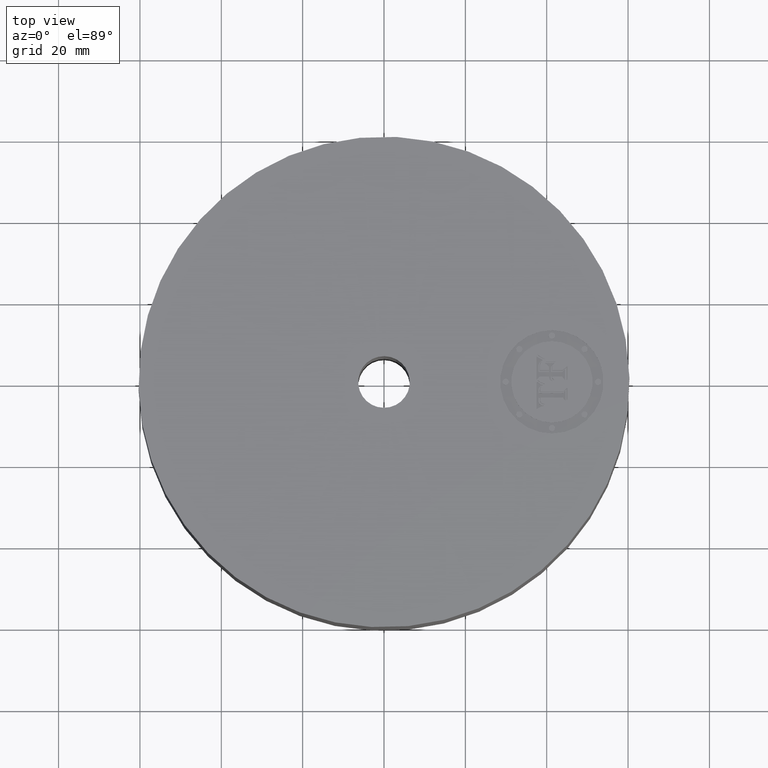
[diagram: clean part render]
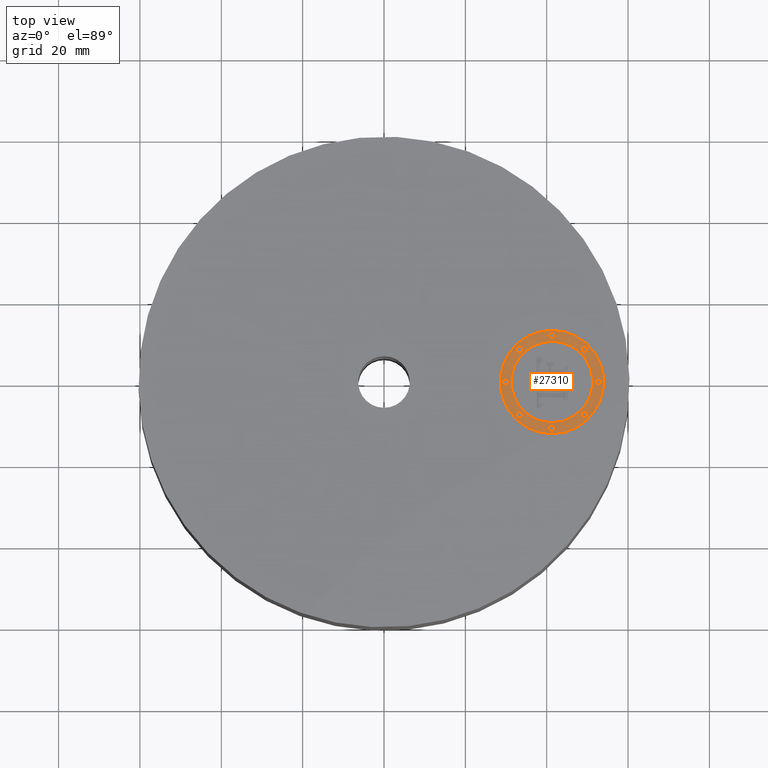
[diagram: same view with one face highlighted and labeled with its STEP entity id]
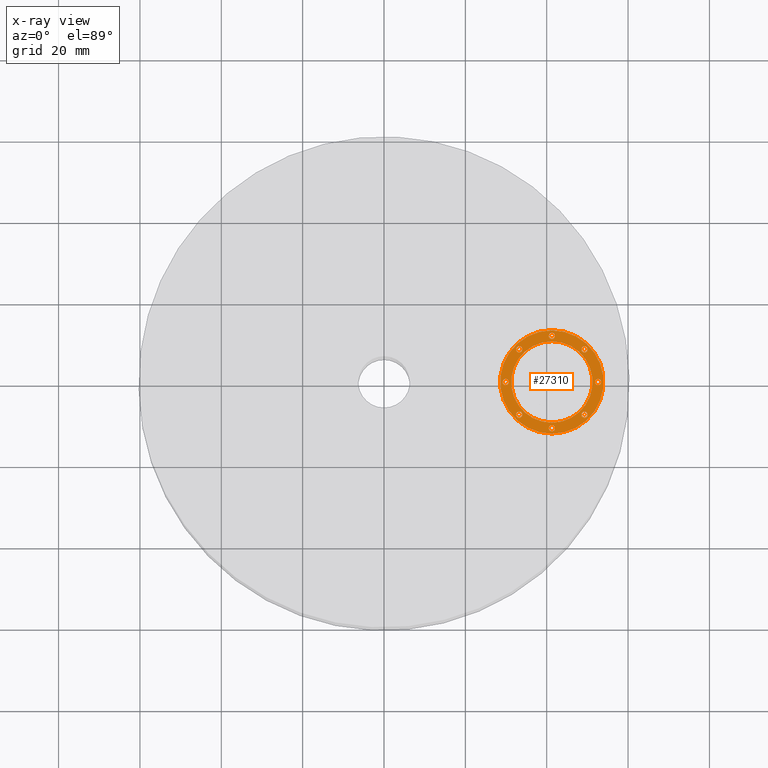
[diagram: x-ray of the same camera — body ghosted, the highlighted face saturated]
A machine part, top view. The second image highlights one B-rep face of the part: STEP entity #27310.
The next image is the same camera in x-ray: the body ghosted, the highlighted face saturated — about 0% of this face is hidden behind the body in this view.
In plain terms, the highlighted planar face has unit normal (0, 0, 1).
Its self-contained STEP definition (entity closure, byte-faithful):
#15957=AXIS2_PLACEMENT_3D('Plane Axis2P3D',#15954,#15955,#15956) ;
#27108=AXIS2_PLACEMENT_3D('Circle Axis2P3D',#27106,#27107,$) ;
#27127=AXIS2_PLACEMENT_3D('Circle Axis2P3D',#27125,#27126,$) ;
#27150=AXIS2_PLACEMENT_3D('Circle Axis2P3D',#27148,#27149,$) ;
#27159=AXIS2_PLACEMENT_3D('Circle Axis2P3D',#27157,#27158,$) ;
#27168=AXIS2_PLACEMENT_3D('Circle Axis2P3D',#27166,#27167,$) ;
#27177=AXIS2_PLACEMENT_3D('Circle Axis2P3D',#27175,#27176,$) ;
#27186=AXIS2_PLACEMENT_3D('Circle Axis2P3D',#27184,#27185,$) ;
#27195=AXIS2_PLACEMENT_3D('Circle Axis2P3D',#27193,#27194,$) ;
#27204=AXIS2_PLACEMENT_3D('Circle Axis2P3D',#27202,#27203,$) ;
#27213=AXIS2_PLACEMENT_3D('Circle Axis2P3D',#27211,#27212,$) ;
#27222=AXIS2_PLACEMENT_3D('Circle Axis2P3D',#27220,#27221,$) ;
#27231=AXIS2_PLACEMENT_3D('Circle Axis2P3D',#27229,#27230,$) ;
#27240=AXIS2_PLACEMENT_3D('Circle Axis2P3D',#27238,#27239,$) ;
#27249=AXIS2_PLACEMENT_3D('Circle Axis2P3D',#27247,#27248,$) ;
#27258=AXIS2_PLACEMENT_3D('Circle Axis2P3D',#27256,#27257,$) ;
#27267=AXIS2_PLACEMENT_3D('Circle Axis2P3D',#27265,#27266,$) ;
#27276=AXIS2_PLACEMENT_3D('Circle Axis2P3D',#27274,#27275,$) ;
#27285=AXIS2_PLACEMENT_3D('Circle Axis2P3D',#27283,#27284,$) ;
#27294=AXIS2_PLACEMENT_3D('Circle Axis2P3D',#27292,#27293,$) ;
#27303=AXIS2_PLACEMENT_3D('Circle Axis2P3D',#27301,#27302,$) ;
#15954=CARTESIAN_POINT('Axis2P3D Location',(0.,0.,1.98500000001)) ;
#27096=CARTESIAN_POINT('Vertex',(1.62500000001,0.499999995002,1.98500000001)) ;
#27103=CARTESIAN_POINT('Vertex',(1.62500000001,-0.499999995002,1.98500000001)) ;
#27106=CARTESIAN_POINT('Axis2P3D Location',(1.62500000001,0.,1.98500000001)) ;
#27125=CARTESIAN_POINT('Axis2P3D Location',(1.62500000001,0.,1.98500000001)) ;
#27148=CARTESIAN_POINT('Axis2P3D Location',(1.62500000001,0.,1.98500000001)) ;
#27152=CARTESIAN_POINT('Vertex',(1.62500000001,-0.393939390002,1.98500000001)) ;
#27154=CARTESIAN_POINT('Vertex',(1.62500000001,0.393939390002,1.98500000001)) ;
#27157=CARTESIAN_POINT('Axis2P3D Location',(1.62500000001,0.,1.98500000001)) ;
#27166=CARTESIAN_POINT('Axis2P3D Location',(1.1780303075,-1.27155105343E-015,1.98500000001)) ;
#27170=CARTESIAN_POINT('Vertex',(1.1780303075,-0.0303030300001,1.98500000001)) ;
#27172=CARTESIAN_POINT('Vertex',(1.1780303075,0.0303030300001,1.98500000001)) ;
#27175=CARTESIAN_POINT('Axis2P3D Location',(1.1780303075,-1.27155105343E-015,1.98500000001)) ;
#27184=CARTESIAN_POINT('Axis2P3D Location',(1.62500000001,0.446969692502,1.98500000001)) ;
#27188=CARTESIAN_POINT('Vertex',(1.62500000001,0.416666662502,1.98500000001)) ;
#27190=CARTESIAN_POINT('Vertex',(1.62500000001,0.477272722502,1.98500000001)) ;
#27193=CARTESIAN_POINT('Axis2P3D Location',(1.62500000001,0.446969692502,1.98500000001)) ;
#27202=CARTESIAN_POINT('Axis2P3D Location',(1.30894469945,0.316055300553,1.98500000001)) ;
#27206=CARTESIAN_POINT('Vertex',(1.30894469945,0.285752270553,1.98500000001)) ;
#27208=CARTESIAN_POINT('Vertex',(1.30894469945,0.346358330553,1.98500000001)) ;
#27211=CARTESIAN_POINT('Axis2P3D Location',(1.30894469945,0.316055300553,1.98500000001)) ;
#27220=CARTESIAN_POINT('Axis2P3D Location',(2.07196969251,1.17265263816E-014,1.98500000001)) ;
#27224=CARTESIAN_POINT('Vertex',(2.07196969251,-0.0303030300001,1.98500000001)) ;
#27226=CARTESIAN_POINT('Vertex',(2.07196969251,0.0303030300001,1.98500000001)) ;
#27229=CARTESIAN_POINT('Axis2P3D Location',(2.07196969251,1.17265263816E-014,1.98500000001)) ;
#27238=CARTESIAN_POINT('Axis2P3D Location',(1.94105530056,0.316055300553,1.98500000001)) ;
#27242=CARTESIAN_POINT('Vertex',(1.94105530056,0.285752270553,1.98500000001)) ;
#27244=CARTESIAN_POINT('Vertex',(1.94105530056,0.346358330553,1.98500000001)) ;
#27247=CARTESIAN_POINT('Axis2P3D Location',(1.94105530056,0.316055300553,1.98500000001)) ;
#27256=CARTESIAN_POINT('Axis2P3D Location',(1.62500000001,-0.446969692502,1.98500000001)) ;
#27260=CARTESIAN_POINT('Vertex',(1.62500000001,-0.416666662502,1.98500000001)) ;
#27262=CARTESIAN_POINT('Vertex',(1.62500000001,-0.477272722502,1.98500000001)) ;
#27265=CARTESIAN_POINT('Axis2P3D Location',(1.62500000001,-0.446969692502,1.98500000001)) ;
#27274=CARTESIAN_POINT('Axis2P3D Location',(1.30894469945,-0.316055300553,1.98500000001)) ;
#27278=CARTESIAN_POINT('Vertex',(1.30894469945,-0.285752270553,1.98500000001)) ;
#27280=CARTESIAN_POINT('Vertex',(1.30894469945,-0.346358330553,1.98500000001)) ;
#27283=CARTESIAN_POINT('Axis2P3D Location',(1.30894469945,-0.316055300553,1.98500000001)) ;
#27292=CARTESIAN_POINT('Axis2P3D Location',(1.94105530056,-0.316055300553,1.98500000001)) ;
#27296=CARTESIAN_POINT('Vertex',(1.94105530056,-0.285752270553,1.98500000001)) ;
#27298=CARTESIAN_POINT('Vertex',(1.94105530056,-0.346358330553,1.98500000001)) ;
#27301=CARTESIAN_POINT('Axis2P3D Location',(1.94105530056,-0.316055300553,1.98500000001)) ;
#15955=DIRECTION('Axis2P3D Direction',(0.,0.,0.0393700787402)) ;
#15956=DIRECTION('Axis2P3D XDirection',(0.0393700787402,0.,0.)) ;
#27107=DIRECTION('Axis2P3D Direction',(0.,0.,0.0393700787402)) ;
#27126=DIRECTION('Axis2P3D Direction',(0.,0.,0.0393700787402)) ;
#27149=DIRECTION('Axis2P3D Direction',(0.,0.,0.0393700787402)) ;
#27158=DIRECTION('Axis2P3D Direction',(0.,0.,0.0393700787402)) ;
#27167=DIRECTION('Axis2P3D Direction',(0.,0.,0.0393700787402)) ;
#27176=DIRECTION('Axis2P3D Direction',(0.,0.,0.0393700787402)) ;
#27185=DIRECTION('Axis2P3D Direction',(0.,0.,0.0393700787402)) ;
#27194=DIRECTION('Axis2P3D Direction',(0.,0.,0.0393700787402)) ;
#27203=DIRECTION('Axis2P3D Direction',(0.,0.,0.0393700787402)) ;
#27212=DIRECTION('Axis2P3D Direction',(0.,0.,0.0393700787402)) ;
#27221=DIRECTION('Axis2P3D Direction',(0.,0.,0.0393700787402)) ;
#27230=DIRECTION('Axis2P3D Direction',(0.,0.,0.0393700787402)) ;
#27239=DIRECTION('Axis2P3D Direction',(0.,0.,0.0393700787402)) ;
#27248=DIRECTION('Axis2P3D Direction',(0.,0.,0.0393700787402)) ;
#27257=DIRECTION('Axis2P3D Direction',(0.,0.,0.0393700787402)) ;
#27266=DIRECTION('Axis2P3D Direction',(0.,0.,0.0393700787402)) ;
#27275=DIRECTION('Axis2P3D Direction',(0.,0.,0.0393700787402)) ;
#27284=DIRECTION('Axis2P3D Direction',(0.,0.,0.0393700787402)) ;
#27293=DIRECTION('Axis2P3D Direction',(0.,0.,0.0393700787402)) ;
#27302=DIRECTION('Axis2P3D Direction',(0.,0.,0.0393700787402)) ;
#27145=ORIENTED_EDGE('',*,*,#27110,.T.) ;
#27146=ORIENTED_EDGE('',*,*,#27129,.T.) ;
#27163=ORIENTED_EDGE('',*,*,#27156,.F.) ;
#27164=ORIENTED_EDGE('',*,*,#27161,.F.) ;
#27181=ORIENTED_EDGE('',*,*,#27174,.F.) ;
#27182=ORIENTED_EDGE('',*,*,#27179,.F.) ;
#27199=ORIENTED_EDGE('',*,*,#27192,.F.) ;
#27200=ORIENTED_EDGE('',*,*,#27197,.F.) ;
#27217=ORIENTED_EDGE('',*,*,#27210,.F.) ;
#27218=ORIENTED_EDGE('',*,*,#27215,.F.) ;
#27235=ORIENTED_EDGE('',*,*,#27228,.F.) ;
#27236=ORIENTED_EDGE('',*,*,#27233,.F.) ;
#27253=ORIENTED_EDGE('',*,*,#27246,.F.) ;
#27254=ORIENTED_EDGE('',*,*,#27251,.F.) ;
#27271=ORIENTED_EDGE('',*,*,#27264,.F.) ;
#27272=ORIENTED_EDGE('',*,*,#27269,.F.) ;
#27289=ORIENTED_EDGE('',*,*,#27282,.F.) ;
#27290=ORIENTED_EDGE('',*,*,#27287,.F.) ;
#27307=ORIENTED_EDGE('',*,*,#27300,.F.) ;
#27308=ORIENTED_EDGE('',*,*,#27305,.F.) ;
#27165=FACE_BOUND('',#27162,.T.) ;
#27183=FACE_BOUND('',#27180,.T.) ;
#27201=FACE_BOUND('',#27198,.T.) ;
#27219=FACE_BOUND('',#27216,.T.) ;
#27237=FACE_BOUND('',#27234,.T.) ;
#27255=FACE_BOUND('',#27252,.T.) ;
#27273=FACE_BOUND('',#27270,.T.) ;
#27291=FACE_BOUND('',#27288,.T.) ;
#27309=FACE_BOUND('',#27306,.T.) ;
#27310=ADVANCED_FACE('PartBody',(#27147,#27165,#27183,#27201,#27219,#27237,#27255,#27273,#27291,#27309),#15958,.T.) ;
#27109=CIRCLE('generated circle',#27108,0.499999995002) ;
#27128=CIRCLE('generated circle',#27127,0.499999995002) ;
#27151=CIRCLE('generated circle',#27150,0.393939390002) ;
#27160=CIRCLE('generated circle',#27159,0.393939390002) ;
#27169=CIRCLE('generated circle',#27168,0.0303030300001) ;
#27178=CIRCLE('generated circle',#27177,0.0303030300001) ;
#27187=CIRCLE('generated circle',#27186,0.0303030300001) ;
#27196=CIRCLE('generated circle',#27195,0.0303030300001) ;
#27205=CIRCLE('generated circle',#27204,0.0303030300001) ;
#27214=CIRCLE('generated circle',#27213,0.0303030300001) ;
#27223=CIRCLE('generated circle',#27222,0.0303030300001) ;
#27232=CIRCLE('generated circle',#27231,0.0303030300001) ;
#27241=CIRCLE('generated circle',#27240,0.0303030300001) ;
#27250=CIRCLE('generated circle',#27249,0.0303030300001) ;
#27259=CIRCLE('generated circle',#27258,0.0303030300001) ;
#27268=CIRCLE('generated circle',#27267,0.0303030300001) ;
#27277=CIRCLE('generated circle',#27276,0.0303030300001) ;
#27286=CIRCLE('generated circle',#27285,0.0303030300001) ;
#27295=CIRCLE('generated circle',#27294,0.0303030300001) ;
#27304=CIRCLE('generated circle',#27303,0.0303030300001) ;
#27110=EDGE_CURVE('',#27097,#27104,#27109,.T.) ;
#27129=EDGE_CURVE('',#27104,#27097,#27128,.T.) ;
#27156=EDGE_CURVE('',#27153,#27155,#27151,.T.) ;
#27161=EDGE_CURVE('',#27155,#27153,#27160,.T.) ;
#27174=EDGE_CURVE('',#27171,#27173,#27169,.T.) ;
#27179=EDGE_CURVE('',#27173,#27171,#27178,.T.) ;
#27192=EDGE_CURVE('',#27189,#27191,#27187,.T.) ;
#27197=EDGE_CURVE('',#27191,#27189,#27196,.T.) ;
#27210=EDGE_CURVE('',#27207,#27209,#27205,.T.) ;
#27215=EDGE_CURVE('',#27209,#27207,#27214,.T.) ;
#27228=EDGE_CURVE('',#27225,#27227,#27223,.T.) ;
#27233=EDGE_CURVE('',#27227,#27225,#27232,.T.) ;
#27246=EDGE_CURVE('',#27243,#27245,#27241,.T.) ;
#27251=EDGE_CURVE('',#27245,#27243,#27250,.T.) ;
#27264=EDGE_CURVE('',#27261,#27263,#27259,.T.) ;
#27269=EDGE_CURVE('',#27263,#27261,#27268,.T.) ;
#27282=EDGE_CURVE('',#27279,#27281,#27277,.T.) ;
#27287=EDGE_CURVE('',#27281,#27279,#27286,.T.) ;
#27300=EDGE_CURVE('',#27297,#27299,#27295,.T.) ;
#27305=EDGE_CURVE('',#27299,#27297,#27304,.T.) ;
#27144=EDGE_LOOP('',(#27145,#27146)) ;
#27162=EDGE_LOOP('',(#27163,#27164)) ;
#27180=EDGE_LOOP('',(#27181,#27182)) ;
#27198=EDGE_LOOP('',(#27199,#27200)) ;
#27216=EDGE_LOOP('',(#27217,#27218)) ;
#27234=EDGE_LOOP('',(#27235,#27236)) ;
#27252=EDGE_LOOP('',(#27253,#27254)) ;
#27270=EDGE_LOOP('',(#27271,#27272)) ;
#27288=EDGE_LOOP('',(#27289,#27290)) ;
#27306=EDGE_LOOP('',(#27307,#27308)) ;
#27147=FACE_OUTER_BOUND('',#27144,.T.) ;
#15958=PLANE('',#15957) ;
#27097=VERTEX_POINT('',#27096) ;
#27104=VERTEX_POINT('',#27103) ;
#27153=VERTEX_POINT('',#27152) ;
#27155=VERTEX_POINT('',#27154) ;
#27171=VERTEX_POINT('',#27170) ;
#27173=VERTEX_POINT('',#27172) ;
#27189=VERTEX_POINT('',#27188) ;
#27191=VERTEX_POINT('',#27190) ;
#27207=VERTEX_POINT('',#27206) ;
#27209=VERTEX_POINT('',#27208) ;
#27225=VERTEX_POINT('',#27224) ;
#27227=VERTEX_POINT('',#27226) ;
#27243=VERTEX_POINT('',#27242) ;
#27245=VERTEX_POINT('',#27244) ;
#27261=VERTEX_POINT('',#27260) ;
#27263=VERTEX_POINT('',#27262) ;
#27279=VERTEX_POINT('',#27278) ;
#27281=VERTEX_POINT('',#27280) ;
#27297=VERTEX_POINT('',#27296) ;
#27299=VERTEX_POINT('',#27298) ;